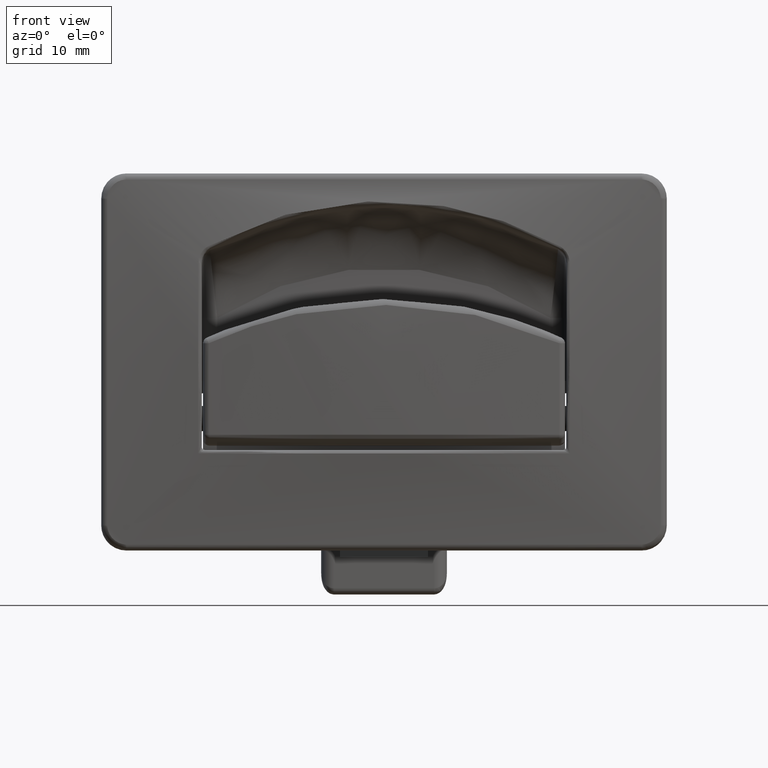
[diagram: clean part render]
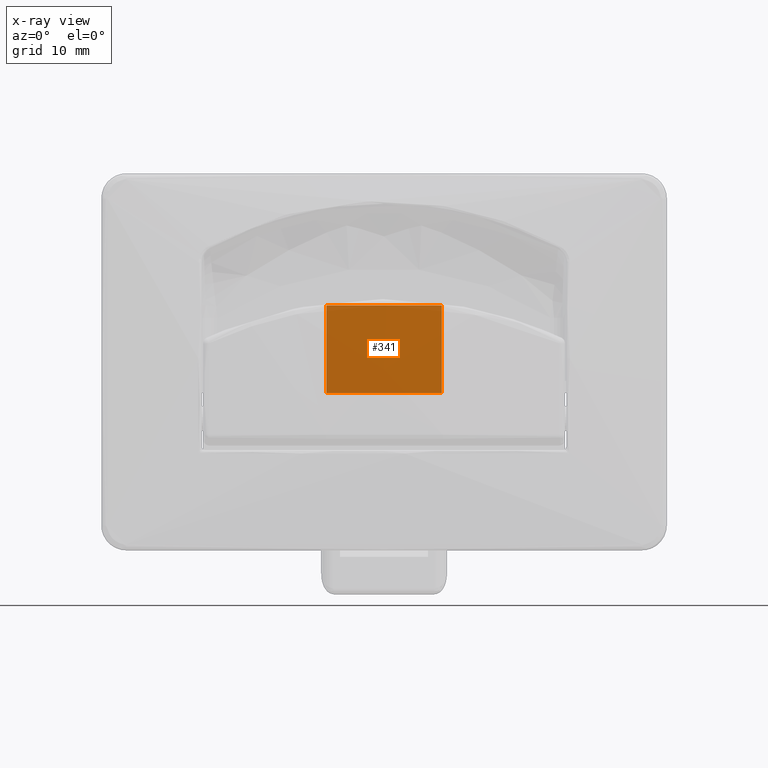
[diagram: x-ray — body ghosted, one internal face saturated and labeled with its STEP entity id]
A machine part, front view, then the same camera in x-ray: the body is ghosted and one INTERNAL B-rep face — a face not visible from any outside direction — is saturated and labeled: STEP entity #341.
In plain terms, the highlighted planar face has unit normal (0, 1, 0).
Its self-contained STEP definition (entity closure, byte-faithful):
#341=ADVANCED_FACE('',(#2307),#2306,.F.);
#2306=PLANE('',#4782);
#2307=FACE_OUTER_BOUND('',#4783,.T.);
#4779=CARTESIAN_POINT('',(-1.10400000000E+01,2.01999999999E+01,2.36000000000E+01));
#4780=DIRECTION('',(0.00000000000E+00,1.00000000000E+00,0.00000000000E+00));
#4781=DIRECTION('',(0.00000000000E+00,0.00000000000E+00,1.00000000000E+00));
#4782=AXIS2_PLACEMENT_3D('',#4779,#4780,#4781);
#4783=EDGE_LOOP('',(#6055,#6056,#6057,#6058));
#6055=ORIENTED_EDGE('',*,*,#6692,.T.);
#6056=ORIENTED_EDGE('',*,*,#6475,.T.);
#6057=ORIENTED_EDGE('',*,*,#6658,.T.);
#6058=ORIENTED_EDGE('',*,*,#6469,.F.);
#6469=EDGE_CURVE('',#8675,#8676,#8677,.T.);
#6475=EDGE_CURVE('',#8718,#8711,#8719,.T.);
#6658=EDGE_CURVE('',#8711,#8676,#9938,.T.);
#6692=EDGE_CURVE('',#8675,#8718,#10149,.T.);
#8675=VERTEX_POINT('',#11962);
#8676=VERTEX_POINT('',#11963);
#8677=LINE('',#11964,#11965);
#8711=VERTEX_POINT('',#11985);
#8718=VERTEX_POINT('',#11990);
#8719=LINE('',#11991,#11992);
#9938=LINE('',#13059,#13060);
#10149=LINE('',#13213,#13214);
#11962=CARTESIAN_POINT('',(-9.20000000000E+00,2.01999999999E+01,2.50000000001E+01));
#11963=CARTESIAN_POINT('',(-9.20000000000E+00,2.01999999999E+01,3.90000000000E+01));
#11964=CARTESIAN_POINT('',(-9.20000000000E+00,2.01999999999E+01,2.50000000001E+01));
#11965=VECTOR('',#11966,1.39999999999E+01);
#11966=DIRECTION('',(0.00000000000E+00,0.00000000000E+00,1.00000000000E+00));
#11985=CARTESIAN_POINT('',(9.20000000000E+00,2.01999999999E+01,3.90000000000E+01));
#11990=CARTESIAN_POINT('',(9.20000000000E+00,2.01999999999E+01,2.50000000001E+01));
#11991=CARTESIAN_POINT('',(9.20000000000E+00,2.01999999999E+01,2.50000000001E+01));
#11992=VECTOR('',#11993,1.39999999999E+01);
#11993=DIRECTION('',(0.00000000000E+00,0.00000000000E+00,1.00000000000E+00));
#13059=CARTESIAN_POINT('',(9.20000000000E+00,2.01999999999E+01,3.90000000000E+01));
#13060=VECTOR('',#13061,1.84000000000E+01);
#13061=DIRECTION('',(-1.00000000000E+00,0.00000000000E+00,0.00000000000E+00));
#13213=CARTESIAN_POINT('',(-9.20000000000E+00,2.01999999999E+01,2.50000000000E+01));
#13214=VECTOR('',#13215,1.84000000000E+01);
#13215=DIRECTION('',(1.00000000000E+00,0.00000000000E+00,2.03122542940E-12));